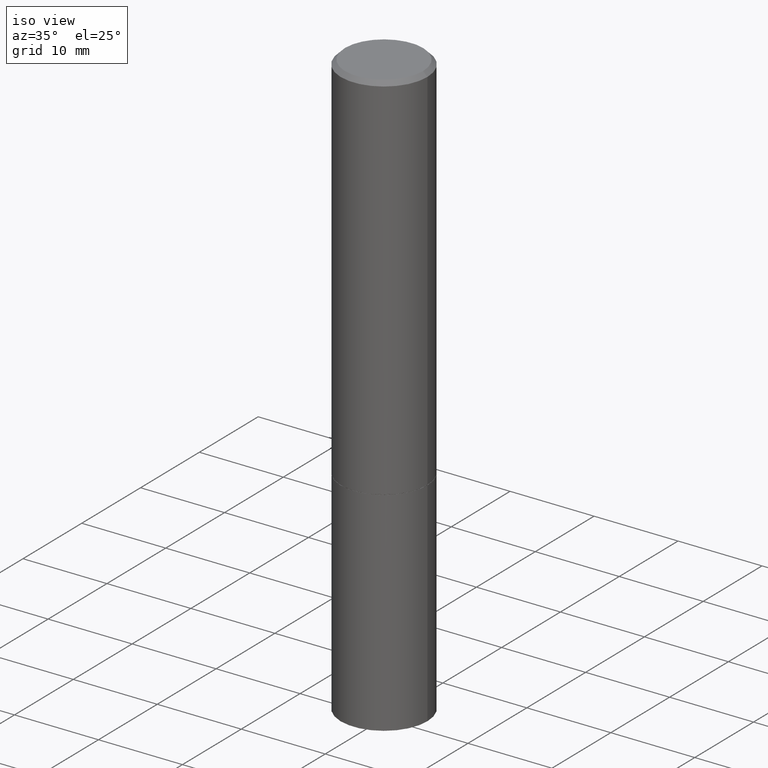
[diagram: clean part render]
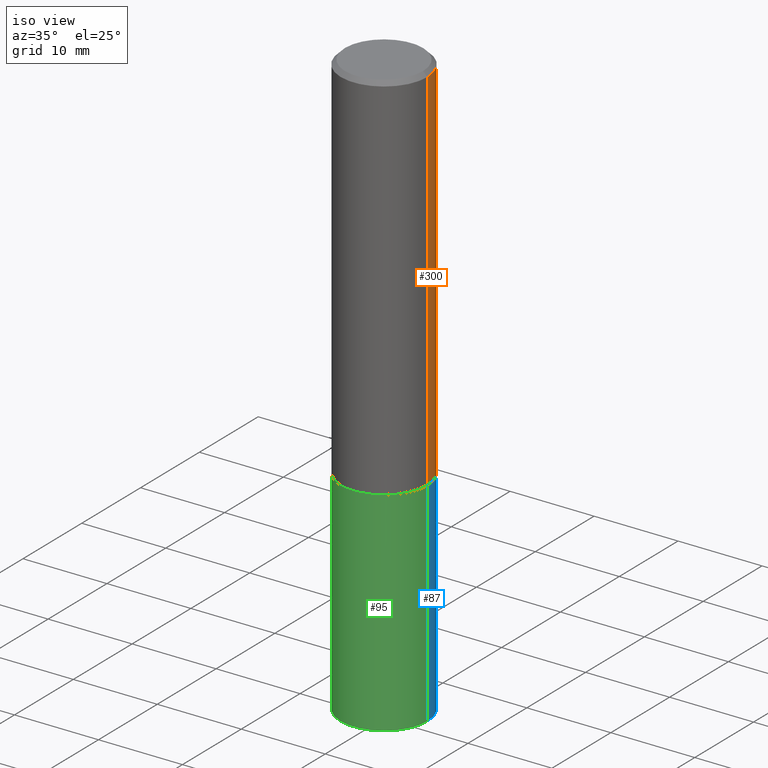
[diagram: same view with three faces highlighted in distinct colors, each labeled with its STEP entity id]
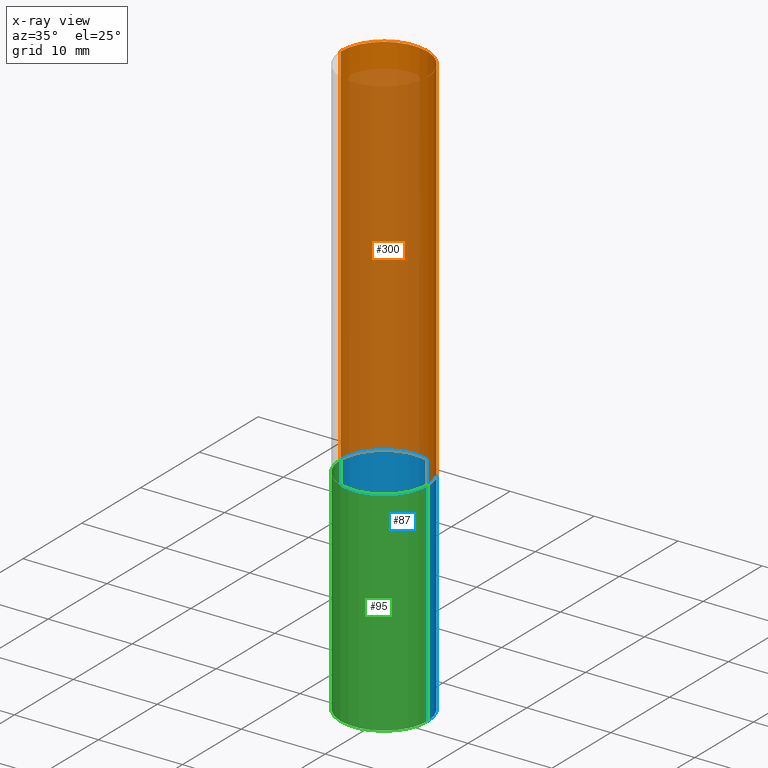
[diagram: x-ray of the same camera — body ghosted, the three highlighted faces saturated]
A machine part, iso view with three faces highlighted in distinct colors.
The next image is the same camera in x-ray (body ghosted, the three faces saturated) — at least one of them is partly hidden behind the body in this view.
Their STEP definitions:

[orange] entity #300 — the highlighted cylindrical surface (partial cylindrical patch) has radius 5.1587 mm, axis along (-0, 0, 1).
#45 = EDGE_CURVE ( 'NONE', #319, #360, #185, .T. ) ;
#49 = EDGE_LOOP ( 'NONE', ( #386, #236, #243, #324 ) ) ;
#57 = CARTESIAN_POINT ( 'NONE',  ( -0.2031000000000000583, -1.645102947877997012E-15, -1.748999999999999888 ) ) ;
#81 = DIRECTION ( 'NONE',  ( 1.000000000000000000, -6.982962677686266711E-15, 4.876176775795935793E-29 ) ) ;
#86 = CARTESIAN_POINT ( 'NONE',  ( 0.000000000000000000, 0.000000000000000000, 0.000000000000000000 ) ) ;
#107 = LINE ( 'NONE', #191, #281 ) ;
#113 = CIRCLE ( 'NONE', #219, 0.2030999999999998362 ) ;
#146 = VERTEX_POINT ( 'NONE', #340 ) ;
#147 = DIRECTION ( 'NONE',  ( -2.445468806185136597E-29, 3.491481338843145583E-15, 1.000000000000000000 ) ) ;
#154 = CYLINDRICAL_SURFACE ( 'NONE', #188, 0.2030999999999999472 ) ;
#159 = VERTEX_POINT ( 'NONE', #251 ) ;
#174 = EDGE_CURVE ( 'NONE', #146, #159, #107, .T. ) ;
#180 = AXIS2_PLACEMENT_3D ( 'NONE', #206, #328, #267 ) ;
#185 = LINE ( 'NONE', #216, #214 ) ;
#188 = AXIS2_PLACEMENT_3D ( 'NONE', #86, #350, #81 ) ;
#191 = CARTESIAN_POINT ( 'NONE',  ( 0.2030999999999999472, -1.418239719838080381E-15, 9.903515031641543342E-30 ) ) ;
#204 = CARTESIAN_POINT ( 'NONE',  ( 4.890937612370284544E-31, -6.982962677686307633E-17, -0.02000000000000004552 ) ) ;
#206 = CARTESIAN_POINT ( 'NONE',  ( 4.277124942017804002E-29, -6.106600861636660875E-15, -1.748999999999999888 ) ) ;
#209 = DIRECTION ( 'NONE',  ( 1.000000000000000000, -6.982962677686266711E-15, 0.000000000000000000 ) ) ;
#214 = VECTOR ( 'NONE', #303, 39.37007874015748143 ) ;
#216 = CARTESIAN_POINT ( 'NONE',  ( -0.2030999999999999472, 1.443112296328763103E-15, -9.990357168307711400E-30 ) ) ;
#219 = AXIS2_PLACEMENT_3D ( 'NONE', #204, #147, #209 ) ;
#223 = DIRECTION ( 'NONE',  ( -2.445468806185136877E-29, 3.491481338843145188E-15, 1.000000000000000000 ) ) ;
#236 = ORIENTED_EDGE ( 'NONE', *, *, #45, .T. ) ;
#243 = ORIENTED_EDGE ( 'NONE', *, *, #339, .F. ) ;
#251 = CARTESIAN_POINT ( 'NONE',  ( 0.2030999999999998362, -1.463196770124260168E-15, -0.02000000000000004552 ) ) ;
#267 = DIRECTION ( 'NONE',  ( 1.000000000000000000, -6.982962677686264344E-15, 0.000000000000000000 ) ) ;
#281 = VECTOR ( 'NONE', #223, 39.37007874015748143 ) ;
#300 = ADVANCED_FACE ( 'NONE', ( #302 ), #154, .T. ) ;
#302 = FACE_OUTER_BOUND ( 'NONE', #49, .T. ) ;
#303 = DIRECTION ( 'NONE',  ( -2.445468806185136877E-29, 3.491481338843145188E-15, 1.000000000000000000 ) ) ;
#307 = EDGE_CURVE ( 'NONE', #146, #319, #348, .T. ) ;
#319 = VERTEX_POINT ( 'NONE', #57 ) ;
#324 = ORIENTED_EDGE ( 'NONE', *, *, #174, .F. ) ;
#328 = DIRECTION ( 'NONE',  ( -2.445468806185136597E-29, 3.491481338843145583E-15, 1.000000000000000000 ) ) ;
#339 = EDGE_CURVE ( 'NONE', #159, #360, #113, .T. ) ;
#340 = CARTESIAN_POINT ( 'NONE',  ( 0.2031000000000000028, -7.524840581474740861E-15, -1.748999999999999888 ) ) ;
#348 = CIRCLE ( 'NONE', #180, 0.2031000000000000028 ) ;
#350 = DIRECTION ( 'NONE',  ( -2.445468806185136597E-29, 3.491481338843145583E-15, 1.000000000000000000 ) ) ;
#360 = VERTEX_POINT ( 'NONE', #383 ) ;
#383 = CARTESIAN_POINT ( 'NONE',  ( -0.2030999999999998362, 1.348410093061216491E-15, -0.02000000000000004552 ) ) ;
#386 = ORIENTED_EDGE ( 'NONE', *, *, #307, .T. ) ;

[blue] entity #87 — the highlighted cylindrical surface (partial cylindrical patch) has radius 5.1587 mm, axis along (-0, 0, 1).
#26 = CARTESIAN_POINT ( 'NONE',  ( 0.2031000000000000028, -1.418239719838080775E-15, 9.903515031641546145E-30 ) ) ;
#54 = AXIS2_PLACEMENT_3D ( 'NONE', #176, #291, #261 ) ;
#55 = CIRCLE ( 'NONE', #298, 0.2031000000000000028 ) ;
#58 = ORIENTED_EDGE ( 'NONE', *, *, #192, .T. ) ;
#62 = VERTEX_POINT ( 'NONE', #354 ) ;
#69 = CARTESIAN_POINT ( 'NONE',  ( 0.2030999999999997530, -1.099494082516604752E-14, -2.750000000000000000 ) ) ;
#74 = CARTESIAN_POINT ( 'NONE',  ( 0.2031000000000000028, -7.528332062813585446E-15, -1.750000000000000000 ) ) ;
#84 = CYLINDRICAL_SURFACE ( 'NONE', #225, 0.2031000000000000028 ) ;
#87 = ADVANCED_FACE ( 'NONE', ( #207 ), #84, .T. ) ;
#108 = ORIENTED_EDGE ( 'NONE', *, *, #138, .T. ) ;
#115 = ORIENTED_EDGE ( 'NONE', *, *, #352, .F. ) ;
#128 = EDGE_LOOP ( 'NONE', ( #108, #58, #377, #115 ) ) ;
#138 = EDGE_CURVE ( 'NONE', #178, #346, #55, .T. ) ;
#156 = CARTESIAN_POINT ( 'NONE',  ( 0.000000000000000000, 0.000000000000000000, 0.000000000000000000 ) ) ;
#158 = LINE ( 'NONE', #26, #275 ) ;
#172 = CARTESIAN_POINT ( 'NONE',  ( 6.725039217009124520E-29, -9.601573681818649859E-15, -2.750000000000000000 ) ) ;
#176 = CARTESIAN_POINT ( 'NONE',  ( 4.279570410823988484E-29, -6.110092342975504671E-15, -1.750000000000000000 ) ) ;
#178 = VERTEX_POINT ( 'NONE', #69 ) ;
#192 = EDGE_CURVE ( 'NONE', #346, #62, #222, .T. ) ;
#207 = FACE_OUTER_BOUND ( 'NONE', #128, .T. ) ;
#222 = LINE ( 'NONE', #338, #362 ) ;
#225 = AXIS2_PLACEMENT_3D ( 'NONE', #156, #305, #278 ) ;
#245 = VERTEX_POINT ( 'NONE', #74 ) ;
#248 = CIRCLE ( 'NONE', #54, 0.2031000000000000028 ) ;
#255 = DIRECTION ( 'NONE',  ( 1.000000000000000000, -6.982962677686264344E-15, 0.000000000000000000 ) ) ;
#256 = EDGE_CURVE ( 'NONE', #245, #62, #248, .T. ) ;
#261 = DIRECTION ( 'NONE',  ( 1.000000000000000000, -6.982962677686269866E-15, 0.000000000000000000 ) ) ;
#275 = VECTOR ( 'NONE', #323, 39.37007874015748143 ) ;
#278 = DIRECTION ( 'NONE',  ( 1.000000000000000000, -6.982962677686266711E-15, 4.876176775795935793E-29 ) ) ;
#285 = DIRECTION ( 'NONE',  ( -2.445468806185136597E-29, 3.491481338843145583E-15, 1.000000000000000000 ) ) ;
#291 = DIRECTION ( 'NONE',  ( -2.445468806185136597E-29, 3.491481338843145583E-15, 1.000000000000000000 ) ) ;
#294 = CARTESIAN_POINT ( 'NONE',  ( -0.2030999999999997530, -8.183333961980571451E-15, -2.750000000000000000 ) ) ;
#298 = AXIS2_PLACEMENT_3D ( 'NONE', #172, #285, #255 ) ;
#305 = DIRECTION ( 'NONE',  ( -2.445468806185136597E-29, 3.491481338843145583E-15, 1.000000000000000000 ) ) ;
#323 = DIRECTION ( 'NONE',  ( -2.445468806185136877E-29, 3.491481338843145188E-15, 1.000000000000000000 ) ) ;
#338 = CARTESIAN_POINT ( 'NONE',  ( -0.2031000000000000028, 1.443112296328763497E-15, -9.990357168307714203E-30 ) ) ;
#343 = DIRECTION ( 'NONE',  ( -2.445468806185136877E-29, 3.491481338843145188E-15, 1.000000000000000000 ) ) ;
#346 = VERTEX_POINT ( 'NONE', #294 ) ;
#352 = EDGE_CURVE ( 'NONE', #178, #245, #158, .T. ) ;
#354 = CARTESIAN_POINT ( 'NONE',  ( -0.2031000000000000028, -6.412720716068313768E-15, -1.750000000000000000 ) ) ;
#362 = VECTOR ( 'NONE', #343, 39.37007874015748143 ) ;
#377 = ORIENTED_EDGE ( 'NONE', *, *, #256, .F. ) ;

[green] entity #95 — the highlighted cylindrical surface (partial cylindrical patch) has radius 5.1587 mm, axis along (-0, 0, 1).
#2 = CARTESIAN_POINT ( 'NONE',  ( 0.000000000000000000, 0.000000000000000000, 0.000000000000000000 ) ) ;
#5 = EDGE_CURVE ( 'NONE', #62, #245, #182, .T. ) ;
#12 = DIRECTION ( 'NONE',  ( -2.445468806185136597E-29, 3.491481338843145583E-15, 1.000000000000000000 ) ) ;
#26 = CARTESIAN_POINT ( 'NONE',  ( 0.2031000000000000028, -1.418239719838080775E-15, 9.903515031641546145E-30 ) ) ;
#30 = FACE_OUTER_BOUND ( 'NONE', #336, .T. ) ;
#42 = DIRECTION ( 'NONE',  ( 1.000000000000000000, -6.982962677686264344E-15, 0.000000000000000000 ) ) ;
#62 = VERTEX_POINT ( 'NONE', #354 ) ;
#69 = CARTESIAN_POINT ( 'NONE',  ( 0.2030999999999997530, -1.099494082516604752E-14, -2.750000000000000000 ) ) ;
#71 = AXIS2_PLACEMENT_3D ( 'NONE', #88, #388, #363 ) ;
#74 = CARTESIAN_POINT ( 'NONE',  ( 0.2031000000000000028, -7.528332062813585446E-15, -1.750000000000000000 ) ) ;
#77 = ORIENTED_EDGE ( 'NONE', *, *, #192, .F. ) ;
#80 = ORIENTED_EDGE ( 'NONE', *, *, #352, .T. ) ;
#88 = CARTESIAN_POINT ( 'NONE',  ( 4.279570410823988484E-29, -6.110092342975504671E-15, -1.750000000000000000 ) ) ;
#95 = ADVANCED_FACE ( 'NONE', ( #30 ), #163, .T. ) ;
#131 = DIRECTION ( 'NONE',  ( -2.445468806185136597E-29, 3.491481338843145583E-15, 1.000000000000000000 ) ) ;
#149 = AXIS2_PLACEMENT_3D ( 'NONE', #372, #12, #42 ) ;
#158 = LINE ( 'NONE', #26, #275 ) ;
#162 = AXIS2_PLACEMENT_3D ( 'NONE', #2, #131, #327 ) ;
#163 = CYLINDRICAL_SURFACE ( 'NONE', #162, 0.2031000000000000028 ) ;
#171 = EDGE_CURVE ( 'NONE', #346, #178, #306, .T. ) ;
#178 = VERTEX_POINT ( 'NONE', #69 ) ;
#182 = CIRCLE ( 'NONE', #71, 0.2031000000000000028 ) ;
#192 = EDGE_CURVE ( 'NONE', #346, #62, #222, .T. ) ;
#222 = LINE ( 'NONE', #338, #362 ) ;
#245 = VERTEX_POINT ( 'NONE', #74 ) ;
#270 = ORIENTED_EDGE ( 'NONE', *, *, #171, .T. ) ;
#275 = VECTOR ( 'NONE', #323, 39.37007874015748143 ) ;
#294 = CARTESIAN_POINT ( 'NONE',  ( -0.2030999999999997530, -8.183333961980571451E-15, -2.750000000000000000 ) ) ;
#306 = CIRCLE ( 'NONE', #149, 0.2031000000000000028 ) ;
#323 = DIRECTION ( 'NONE',  ( -2.445468806185136877E-29, 3.491481338843145188E-15, 1.000000000000000000 ) ) ;
#327 = DIRECTION ( 'NONE',  ( 1.000000000000000000, -6.982962677686266711E-15, 4.876176775795935793E-29 ) ) ;
#336 = EDGE_LOOP ( 'NONE', ( #77, #270, #80, #345 ) ) ;
#338 = CARTESIAN_POINT ( 'NONE',  ( -0.2031000000000000028, 1.443112296328763497E-15, -9.990357168307714203E-30 ) ) ;
#343 = DIRECTION ( 'NONE',  ( -2.445468806185136877E-29, 3.491481338843145188E-15, 1.000000000000000000 ) ) ;
#345 = ORIENTED_EDGE ( 'NONE', *, *, #5, .F. ) ;
#346 = VERTEX_POINT ( 'NONE', #294 ) ;
#352 = EDGE_CURVE ( 'NONE', #178, #245, #158, .T. ) ;
#354 = CARTESIAN_POINT ( 'NONE',  ( -0.2031000000000000028, -6.412720716068313768E-15, -1.750000000000000000 ) ) ;
#362 = VECTOR ( 'NONE', #343, 39.37007874015748143 ) ;
#363 = DIRECTION ( 'NONE',  ( 1.000000000000000000, -6.982962677686269866E-15, 0.000000000000000000 ) ) ;
#372 = CARTESIAN_POINT ( 'NONE',  ( 6.725039217009124520E-29, -9.601573681818649859E-15, -2.750000000000000000 ) ) ;
#388 = DIRECTION ( 'NONE',  ( -2.445468806185136597E-29, 3.491481338843145583E-15, 1.000000000000000000 ) ) ;